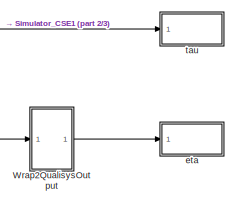
[diagram: root canvas - part 1/3, top right region]
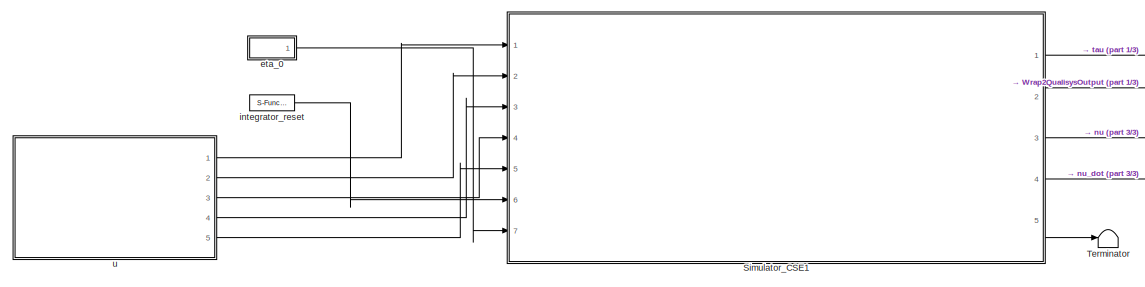
[diagram: root canvas - part 2/3, middle left region]
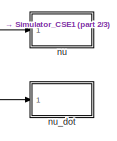
[diagram: root canvas - part 3/3, bottom right region]
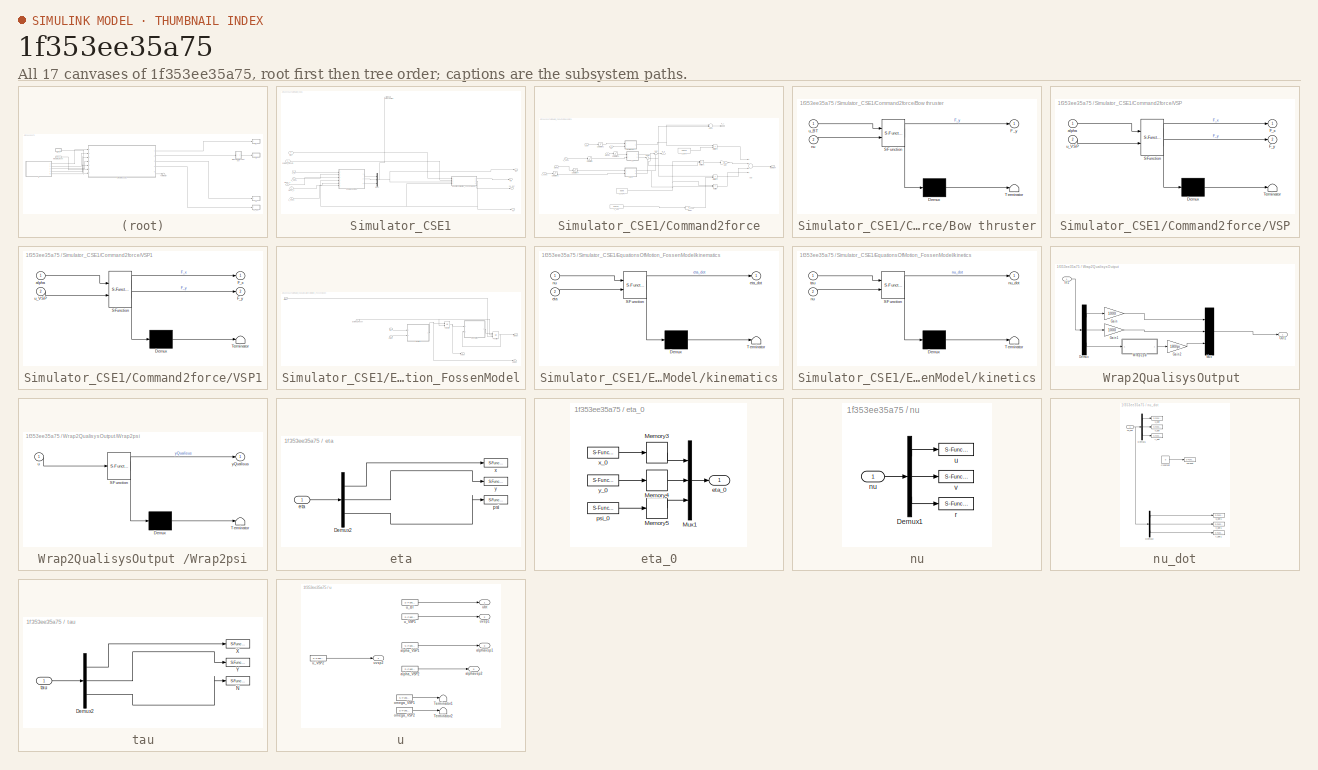
[diagram: thumbnail index - all 17 canvases of the model, root first then tree order]
MODEL slx_1f353ee35a75
KIND model
CONFIG AbsTol = auto
CONFIG EnableMultiTasking = on
CONFIG FixedStep = 0.01
CONFIG MaxStep = auto
CONFIG MinStep = auto
CONFIG RelTol = 1e-3
CONFIG SampleTimeConstraint = Unconstrained
CONFIG Solver = ode4
CONFIG SolverName = ode4
CONFIG StartTime = 0.0
CONFIG StopTime = inf
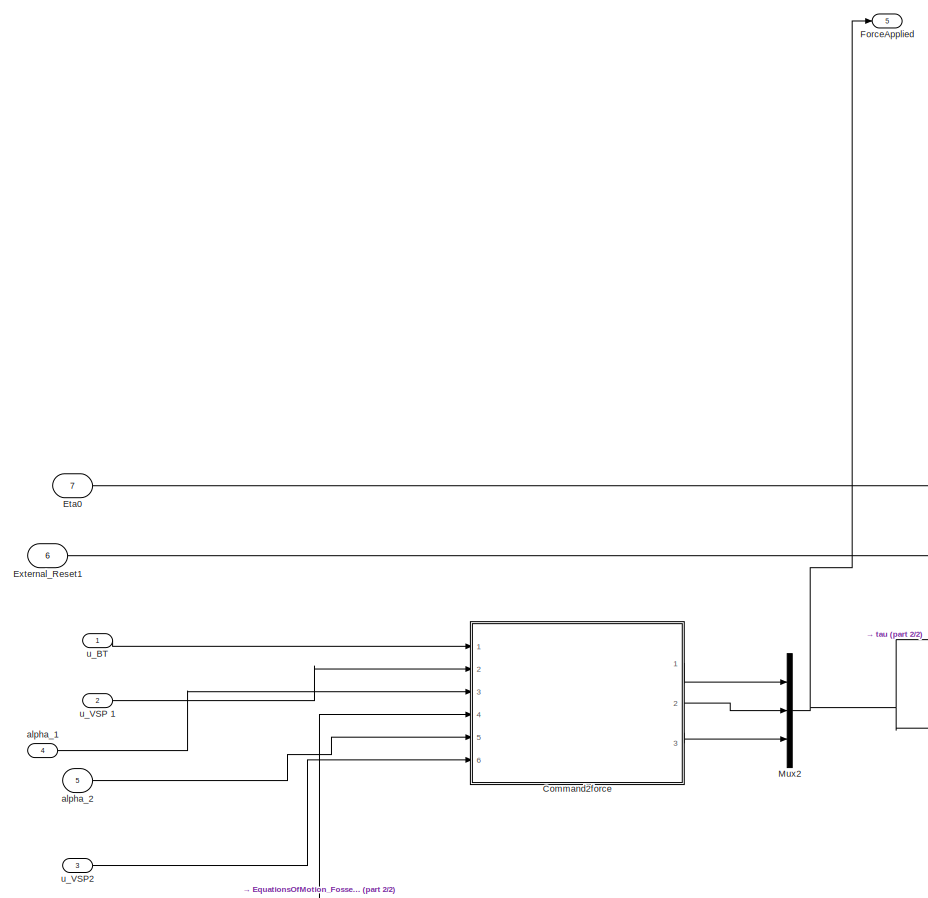
[diagram: Simulator_CSE1 - part 1/2, left side, full height]
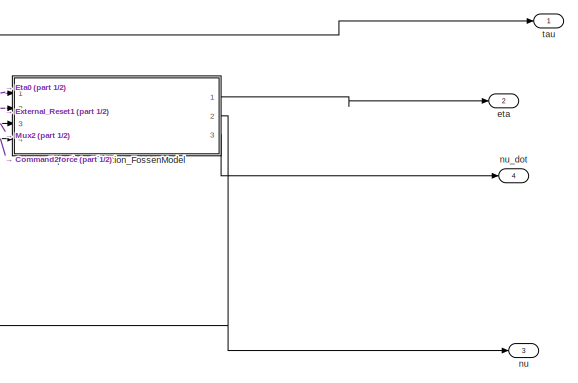
[diagram: Simulator_CSE1 - part 2/2, bottom right region]
BLOCK [SubSystem] Simulator_CSE1
  Ports = [7, 5]
  RequestExecContextInheritance = off
  Variant = off
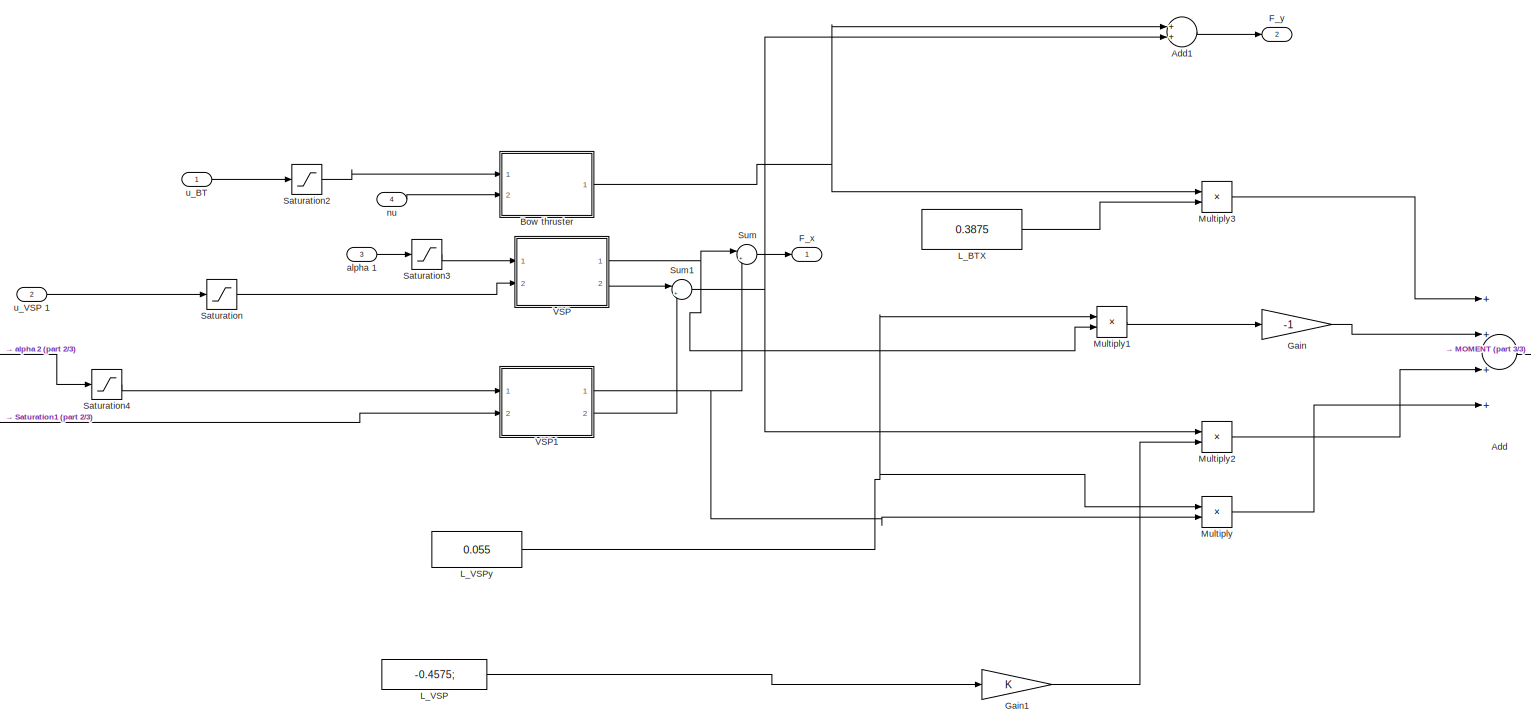
[diagram: Simulator_CSE1/Command2force - part 1/3, most of the canvas]
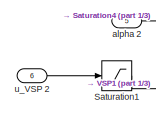
[diagram: Simulator_CSE1/Command2force - part 2/3, middle left region]
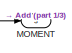
[diagram: Simulator_CSE1/Command2force - part 3/3, middle right region]
BLOCK [SubSystem] Simulator_CSE1/Command2force
  Ports = [6, 3]
  RequestExecContextInheritance = off
  Variant = off
BLOCK [Sum] Simulator_CSE1/Command2force/Add
  InputSameDT = off
  Inputs = ++++
  OutDataTypeStr = Inherit: Inherit via internal rule
  Ports = [4, 1]
  SaturateOnIntegerOverflow = off
BLOCK [Sum] Simulator_CSE1/Command2force/Add1
  InputSameDT = off
  OutDataTypeStr = Inherit: Inherit via internal rule
  Ports = [2, 1]
  SaturateOnIntegerOverflow = off
BLOCK [SubSystem] Simulator_CSE1/Command2force/Bow thruster
  ErrorFcn = Stateflow.Translate.translate
  PermitHierarchicalResolution = ExplicitOnly
  Ports = [2, 1]
  RequestExecContextInheritance = off
  SFBlockType = MATLAB Function
  TreatAsAtomicUnit = on
  Variant = off
BLOCK [Demux] Simulator_CSE1/Command2force/Bow thruster/ Demux 
  Outputs = 1
  Ports = [1, 1]
BLOCK [S-Function] Simulator_CSE1/Command2force/Bow thruster/ SFunction 
  EnableBusSupport = on
  FunctionName = sf_sfun
  PortCounts = [2 2]
  Ports = [2, 2]
  SFcnIsStateOwnerBlock = off
  SFunctionDeploymentMode = off
  Tag = Stateflow S-Function CSE1_HIL_u 12
BLOCK [Terminator] Simulator_CSE1/Command2force/Bow thruster/ Terminator 
BLOCK [Outport] Simulator_CSE1/Command2force/Bow thruster/F_y
  IconDisplay = Port number
BLOCK [Inport] Simulator_CSE1/Command2force/Bow thruster/nu
  IconDisplay = Port number
  Port = 2
BLOCK [Inport] Simulator_CSE1/Command2force/Bow thruster/u_BT
  IconDisplay = Port number
BLOCK [Outport] Simulator_CSE1/Command2force/F_x
  IconDisplay = Port number
BLOCK [Outport] Simulator_CSE1/Command2force/F_y 
  IconDisplay = Port number
  Port = 2
BLOCK [Gain] Simulator_CSE1/Command2force/Gain
  Gain = -1
  OutDataTypeStr = Inherit: Inherit via internal rule
  ParamDataTypeStr = Inherit: Inherit via internal rule
  SaturateOnIntegerOverflow = off
BLOCK [Gain] Simulator_CSE1/Command2force/Gain1
  OutDataTypeStr = Inherit: Inherit via internal rule
  ParamDataTypeStr = Inherit: Inherit via internal rule
  SaturateOnIntegerOverflow = off
BLOCK [Constant] Simulator_CSE1/Command2force/L_BTX
  Value = 0.3875
BLOCK [Constant] Simulator_CSE1/Command2force/L_VSP
  Value = -0.4575;
BLOCK [Constant] Simulator_CSE1/Command2force/L_VSPy
  Value = 0.055
BLOCK [Outport] Simulator_CSE1/Command2force/MOMENT 
  IconDisplay = Port number
  Port = 3
BLOCK [Product] Simulator_CSE1/Command2force/Multiply
  InputSameDT = off
  OutDataTypeStr = Inherit: Inherit via internal rule
  Ports = [2, 1]
  RndMeth = Floor
  SaturateOnIntegerOverflow = off
BLOCK [Product] Simulator_CSE1/Command2force/Multiply1
  InputSameDT = off
  OutDataTypeStr = Inherit: Inherit via internal rule
  Ports = [2, 1]
  RndMeth = Floor
  SaturateOnIntegerOverflow = off
BLOCK [Product] Simulator_CSE1/Command2force/Multiply2
  InputSameDT = off
  OutDataTypeStr = Inherit: Inherit via internal rule
  Ports = [2, 1]
  RndMeth = Floor
  SaturateOnIntegerOverflow = off
BLOCK [Product] Simulator_CSE1/Command2force/Multiply3
  InputSameDT = off
  OutDataTypeStr = Inherit: Inherit via internal rule
  Ports = [2, 1]
  RndMeth = Floor
  SaturateOnIntegerOverflow = off
BLOCK [Saturate] Simulator_CSE1/Command2force/Saturation
  InputPortMap = u0
  LowerLimit = 0
  Ports = [1, 1]
  UpperLimit = 1
BLOCK [Saturate] Simulator_CSE1/Command2force/Saturation1
  InputPortMap = u0
  LowerLimit = 0
  Ports = [1, 1]
  UpperLimit = 1
BLOCK [Saturate] Simulator_CSE1/Command2force/Saturation2
  InputPortMap = u0
  LowerLimit = -1
  Ports = [1, 1]
  UpperLimit = 1
BLOCK [Saturate] Simulator_CSE1/Command2force/Saturation3
  InputPortMap = u0
  LowerLimit = -pi
  Ports = [1, 1]
  UpperLimit = pi
BLOCK [Saturate] Simulator_CSE1/Command2force/Saturation4
  InputPortMap = u0
  LowerLimit = -pi
  Ports = [1, 1]
  UpperLimit = pi
BLOCK [Sum] Simulator_CSE1/Command2force/Sum
  IconShape = round
  InputSameDT = off
  Inputs = |++
  OutDataTypeStr = Inherit: Inherit via internal rule
  Ports = [2, 1]
  SaturateOnIntegerOverflow = off
BLOCK [Sum] Simulator_CSE1/Command2force/Sum1
  IconShape = round
  InputSameDT = off
  Inputs = |++
  OutDataTypeStr = Inherit: Inherit via internal rule
  Ports = [2, 1]
  SaturateOnIntegerOverflow = off
BLOCK [SubSystem] Simulator_CSE1/Command2force/VSP
  ErrorFcn = Stateflow.Translate.translate
  PermitHierarchicalResolution = ExplicitOnly
  Ports = [2, 2]
  RequestExecContextInheritance = off
  SFBlockType = MATLAB Function
  TreatAsAtomicUnit = on
  Variant = off
BLOCK [Demux] Simulator_CSE1/Command2force/VSP/ Demux 
  Outputs = 1
  Ports = [1, 1]
BLOCK [S-Function] Simulator_CSE1/Command2force/VSP/ SFunction 
  EnableBusSupport = on
  FunctionName = sf_sfun
  PortCounts = [2 3]
  Ports = [2, 3]
  SFcnIsStateOwnerBlock = off
  SFunctionDeploymentMode = off
  Tag = Stateflow S-Function CSE1_HIL_u 13
BLOCK [Terminator] Simulator_CSE1/Command2force/VSP/ Terminator 
BLOCK [Outport] Simulator_CSE1/Command2force/VSP/F_x
  IconDisplay = Port number
BLOCK [Outport] Simulator_CSE1/Command2force/VSP/F_y
  IconDisplay = Port number
  Port = 2
BLOCK [Inport] Simulator_CSE1/Command2force/VSP/alpha
  IconDisplay = Port number
BLOCK [Inport] Simulator_CSE1/Command2force/VSP/u_VSP
  IconDisplay = Port number
  Port = 2
BLOCK [SubSystem] Simulator_CSE1/Command2force/VSP1
  ErrorFcn = Stateflow.Translate.translate
  PermitHierarchicalResolution = ExplicitOnly
  Ports = [2, 2]
  RequestExecContextInheritance = off
  SFBlockType = MATLAB Function
  TreatAsAtomicUnit = on
  Variant = off
BLOCK [Demux] Simulator_CSE1/Command2force/VSP1/ Demux 
  Outputs = 1
  Ports = [1, 1]
BLOCK [S-Function] Simulator_CSE1/Command2force/VSP1/ SFunction 
  EnableBusSupport = on
  FunctionName = sf_sfun
  PortCounts = [2 3]
  Ports = [2, 3]
  SFcnIsStateOwnerBlock = off
  SFunctionDeploymentMode = off
  Tag = Stateflow S-Function CSE1_HIL_u 14
BLOCK [Terminator] Simulator_CSE1/Command2force/VSP1/ Terminator 
BLOCK [Outport] Simulator_CSE1/Command2force/VSP1/F_x
  IconDisplay = Port number
BLOCK [Outport] Simulator_CSE1/Command2force/VSP1/F_y
  IconDisplay = Port number
  Port = 2
BLOCK [Inport] Simulator_CSE1/Command2force/VSP1/alpha
  IconDisplay = Port number
BLOCK [Inport] Simulator_CSE1/Command2force/VSP1/u_VSP
  IconDisplay = Port number
  Port = 2
BLOCK [Inport] Simulator_CSE1/Command2force/alpha 1
  IconDisplay = Port number
  Port = 3
BLOCK [Inport] Simulator_CSE1/Command2force/alpha 2
  IconDisplay = Port number
  Port = 5
BLOCK [Inport] Simulator_CSE1/Command2force/nu
  IconDisplay = Port number
  Port = 4
BLOCK [Inport] Simulator_CSE1/Command2force/u_BT
  IconDisplay = Port number
BLOCK [Inport] Simulator_CSE1/Command2force/u_VSP 1
  IconDisplay = Port number
  Port = 2
BLOCK [Inport] Simulator_CSE1/Command2force/u_VSP 2
  IconDisplay = Port number
  Port = 6
BLOCK [SubSystem] Simulator_CSE1/EquationsOfMotion_FossenModel
  Ports = [4, 3]
  RequestExecContextInheritance = off
  Variant = off
BLOCK [Outport] Simulator_CSE1/EquationsOfMotion_FossenModel/EtaOut
  IconDisplay = Port number
BLOCK [Inport] Simulator_CSE1/EquationsOfMotion_FossenModel/External_Reset
  IconDisplay = Port number
  Port = 2
BLOCK [Integrator] Simulator_CSE1/EquationsOfMotion_FossenModel/Position
  ExternalReset = either
  InitialCondition = [0 0 0]'
  InitialConditionSource = external
  Ports = [3, 1]
BLOCK [Integrator] Simulator_CSE1/EquationsOfMotion_FossenModel/Velocity
  ExternalReset = either
  InitialCondition = [0 0 0]'
  Ports = [2, 1]
BLOCK [Inport] Simulator_CSE1/EquationsOfMotion_FossenModel/[eta0] 
  IconDisplay = Port number
BLOCK [SubSystem] Simulator_CSE1/EquationsOfMotion_FossenModel/kinematics
  ErrorFcn = Stateflow.Translate.translate
  PermitHierarchicalResolution = ExplicitOnly
  Ports = [2, 1]
  RequestExecContextInheritance = off
  SFBlockType = MATLAB Function
  TreatAsAtomicUnit = on
  Variant = off
BLOCK [Demux] Simulator_CSE1/EquationsOfMotion_FossenModel/kinematics/ Demux 
  Outputs = 1
  Ports = [1, 1]
BLOCK [S-Function] Simulator_CSE1/EquationsOfMotion_FossenModel/kinematics/ SFunction 
  EnableBusSupport = on
  FunctionName = sf_sfun
  PortCounts = [2 2]
  Ports = [2, 2]
  SFcnIsStateOwnerBlock = off
  SFunctionDeploymentMode = off
  Tag = Stateflow S-Function CSE1_HIL_u 1
BLOCK [Terminator] Simulator_CSE1/EquationsOfMotion_FossenModel/kinematics/ Terminator 
BLOCK [Inport] Simulator_CSE1/EquationsOfMotion_FossenModel/kinematics/eta
  IconDisplay = Port number
  Port = 2
BLOCK [Outport] Simulator_CSE1/EquationsOfMotion_FossenModel/kinematics/eta_dot
  IconDisplay = Port number
BLOCK [Inport] Simulator_CSE1/EquationsOfMotion_FossenModel/kinematics/nu
  IconDisplay = Port number
BLOCK [SubSystem] Simulator_CSE1/EquationsOfMotion_FossenModel/kinetics
  ErrorFcn = Stateflow.Translate.translate
  PermitHierarchicalResolution = ExplicitOnly
  Ports = [2, 1]
  RequestExecContextInheritance = off
  SFBlockType = MATLAB Function
  TreatAsAtomicUnit = on
  Variant = off
BLOCK [Demux] Simulator_CSE1/EquationsOfMotion_FossenModel/kinetics/ Demux 
  Outputs = 1
  Ports = [1, 1]
BLOCK [S-Function] Simulator_CSE1/EquationsOfMotion_FossenModel/kinetics/ SFunction 
  EnableBusSupport = on
  FunctionName = sf_sfun
  PortCounts = [2 2]
  Ports = [2, 2]
  SFcnIsStateOwnerBlock = off
  SFunctionDeploymentMode = off
  Tag = Stateflow S-Function CSE1_HIL_u 2
BLOCK [Terminator] Simulator_CSE1/EquationsOfMotion_FossenModel/kinetics/ Terminator 
BLOCK [Inport] Simulator_CSE1/EquationsOfMotion_FossenModel/kinetics/nu
  IconDisplay = Port number
  Port = 2
BLOCK [Outport] Simulator_CSE1/EquationsOfMotion_FossenModel/kinetics/nu_dot
  IconDisplay = Port number
BLOCK [Inport] Simulator_CSE1/EquationsOfMotion_FossenModel/kinetics/tau
  IconDisplay = Port number
BLOCK [Inport] Simulator_CSE1/EquationsOfMotion_FossenModel/nuInn
  IconDisplay = Port number
  Port = 4
BLOCK [Outport] Simulator_CSE1/EquationsOfMotion_FossenModel/nuOut
  IconDisplay = Port number
  Port = 2
BLOCK [Outport] Simulator_CSE1/EquationsOfMotion_FossenModel/nudot
  IconDisplay = Port number
  Port = 3
BLOCK [Inport] Simulator_CSE1/EquationsOfMotion_FossenModel/tau
  IconDisplay = Port number
  Port = 3
BLOCK [Inport] Simulator_CSE1/Eta0
  IconDisplay = Port number
  Port = 7
BLOCK [Inport] Simulator_CSE1/External_Reset1
  IconDisplay = Port number
  Port = 6
BLOCK [Outport] Simulator_CSE1/ForceApplied
  IconDisplay = Port number
  Port = 5
BLOCK [Mux] Simulator_CSE1/Mux2
  DisplayOption = bar
  Inputs = 3
  Ports = [3, 1]
BLOCK [Inport] Simulator_CSE1/alpha_1
  IconDisplay = Port number
  Port = 4
BLOCK [Inport] Simulator_CSE1/alpha_2
  IconDisplay = Port number
  Port = 5
BLOCK [Outport] Simulator_CSE1/eta
  IconDisplay = Port number
  Port = 2
BLOCK [Outport] Simulator_CSE1/nu
  IconDisplay = Port number
  Port = 3
BLOCK [Outport] Simulator_CSE1/nu_dot
  IconDisplay = Port number
  Port = 4
BLOCK [Outport] Simulator_CSE1/tau
  IconDisplay = Port number
BLOCK [Inport] Simulator_CSE1/u_BT
  IconDisplay = Port number
BLOCK [Inport] Simulator_CSE1/u_VSP 1
  IconDisplay = Port number
  Port = 2
BLOCK [Inport] Simulator_CSE1/u_VSP2
  IconDisplay = Port number
  Port = 3
BLOCK [Terminator] Terminator
BLOCK [SubSystem] Wrap2QualisysOutput 
  Ports = [1, 1]
  RequestExecContextInheritance = off
  Variant = off
BLOCK [Demux] Wrap2QualisysOutput /Demux
  DisplayOption = bar
  Outputs = 3
  Ports = [1, 3]
BLOCK [Gain] Wrap2QualisysOutput /Gain
  Gain = 1000
  OutDataTypeStr = Inherit: Inherit via internal rule
  ParamDataTypeStr = Inherit: Inherit via internal rule
  SaturateOnIntegerOverflow = off
BLOCK [Gain] Wrap2QualisysOutput /Gain1
  Gain = 1000
  OutDataTypeStr = Inherit: Inherit via internal rule
  ParamDataTypeStr = Inherit: Inherit via internal rule
  SaturateOnIntegerOverflow = off
BLOCK [Gain] Wrap2QualisysOutput /Gain2
  Gain = 180/pi
  OutDataTypeStr = Inherit: Inherit via internal rule
  ParamDataTypeStr = Inherit: Inherit via internal rule
  SaturateOnIntegerOverflow = off
BLOCK [Inport] Wrap2QualisysOutput /In1
  IconDisplay = Port number
BLOCK [Mux] Wrap2QualisysOutput /Mux
  DisplayOption = bar
  Inputs = 3
  Ports = [3, 1]
BLOCK [Outport] Wrap2QualisysOutput /Out1
  IconDisplay = Port number
BLOCK [SubSystem] Wrap2QualisysOutput /Wrap2psi
  ErrorFcn = Stateflow.Translate.translate
  PermitHierarchicalResolution = ExplicitOnly
  Ports = [1, 1]
  RequestExecContextInheritance = off
  SFBlockType = MATLAB Function
  TreatAsAtomicUnit = on
  Variant = off
BLOCK [Demux] Wrap2QualisysOutput /Wrap2psi/ Demux 
  Outputs = 1
  Ports = [1, 1]
BLOCK [S-Function] Wrap2QualisysOutput /Wrap2psi/ SFunction 
  EnableBusSupport = off
  FunctionName = sf_sfun
  PortCounts = [1 2]
  Ports = [1, 2]
  SFcnIsStateOwnerBlock = off
  SFunctionDeploymentMode = off
  Tag = Stateflow S-Function CSE1_HIL_u 4
BLOCK [Terminator] Wrap2QualisysOutput /Wrap2psi/ Terminator 
BLOCK [Inport] Wrap2QualisysOutput /Wrap2psi/u
  IconDisplay = Port number
BLOCK [Outport] Wrap2QualisysOutput /Wrap2psi/yQualisus
  IconDisplay = Port number
BLOCK [SubSystem] eta
  Ports = [1]
  RequestExecContextInheritance = off
  Variant = off
BLOCK [Demux] eta/Demux2
  DisplayOption = bar
  Outputs = 3
  Ports = [1, 3]
BLOCK [Inport] eta/eta
  IconDisplay = Port number
BLOCK [S-Function] eta/psi
  CopyFcn = NIVeriStand_MDL_functions('', 'IO_copy');
  DeleteFcn = NIVeriStand_MDL_functions('', 'IO_delete');
  EnableBusSupport = off
  FunctionName = NIVeriStandIO
  MoveFcn = set_param(gcb, 'Mask', 'on');
  Parameters = width dtype portnum stime stype btype
  Ports = [1]
  Priority = 3
  SFcnIsStateOwnerBlock = off
  SFunctionDeploymentMode = off
BLOCK [S-Function] eta/x
  CopyFcn = NIVeriStand_MDL_functions('', 'IO_copy');
  DeleteFcn = NIVeriStand_MDL_functions('', 'IO_delete');
  EnableBusSupport = off
  FunctionName = NIVeriStandIO
  MoveFcn = set_param(gcb, 'Mask', 'on');
  Parameters = width dtype portnum stime stype btype
  Ports = [1]
  Priority = 1
  SFcnIsStateOwnerBlock = off
  SFunctionDeploymentMode = off
BLOCK [S-Function] eta/y
  CopyFcn = NIVeriStand_MDL_functions('', 'IO_copy');
  DeleteFcn = NIVeriStand_MDL_functions('', 'IO_delete');
  EnableBusSupport = off
  FunctionName = NIVeriStandIO
  MoveFcn = set_param(gcb, 'Mask', 'on');
  Parameters = width dtype portnum stime stype btype
  Ports = [1]
  Priority = 2
  SFcnIsStateOwnerBlock = off
  SFunctionDeploymentMode = off
BLOCK [SubSystem] eta_0
  Ports = [0, 1]
  RequestExecContextInheritance = off
  Variant = off
BLOCK [Memory] eta_0/Memory3
BLOCK [Memory] eta_0/Memory4
BLOCK [Memory] eta_0/Memory5
BLOCK [Mux] eta_0/Mux1
  DisplayOption = bar
  Inputs = 3
  Ports = [3, 1]
BLOCK [Outport] eta_0/eta_0
  IconDisplay = Port number
BLOCK [S-Function] eta_0/psi_0
  CopyFcn = NIVeriStand_MDL_functions('', 'IO_copy');
  DeleteFcn = NIVeriStand_MDL_functions('', 'IO_delete');
  EnableBusSupport = off
  FunctionName = NIVeriStandIO
  MoveFcn = set_param(gcb, 'Mask', 'on');
  Parameters = width dtype portnum stime stype btype
  Ports = [0, 1]
  Priority = 1
  SFcnIsStateOwnerBlock = off
  SFunctionDeploymentMode = off
BLOCK [S-Function] eta_0/x_0
  CopyFcn = NIVeriStand_MDL_functions('', 'IO_copy');
  DeleteFcn = NIVeriStand_MDL_functions('', 'IO_delete');
  EnableBusSupport = off
  FunctionName = NIVeriStandIO
  MoveFcn = set_param(gcb, 'Mask', 'on');
  Parameters = width dtype portnum stime stype btype
  Ports = [0, 1]
  Priority = 2
  SFcnIsStateOwnerBlock = off
  SFunctionDeploymentMode = off
BLOCK [S-Function] eta_0/y_0
  CopyFcn = NIVeriStand_MDL_functions('', 'IO_copy');
  DeleteFcn = NIVeriStand_MDL_functions('', 'IO_delete');
  EnableBusSupport = off
  FunctionName = NIVeriStandIO
  MoveFcn = set_param(gcb, 'Mask', 'on');
  Parameters = width dtype portnum stime stype btype
  Ports = [0, 1]
  Priority = 3
  SFcnIsStateOwnerBlock = off
  SFunctionDeploymentMode = off
BLOCK [S-Function] integrator_reset
  CopyFcn = NIVeriStand_MDL_functions('', 'IO_copy');
  DeleteFcn = NIVeriStand_MDL_functions('', 'IO_delete');
  EnableBusSupport = off
  FunctionName = NIVeriStandIO
  MoveFcn = set_param(gcb, 'Mask', 'on');
  Parameters = width dtype portnum stime stype btype
  Ports = [0, 1]
  Priority = 1
  SFcnIsStateOwnerBlock = off
  SFunctionDeploymentMode = off
BLOCK [SubSystem] nu
  Ports = [1]
  RequestExecContextInheritance = off
  Variant = off
BLOCK [Demux] nu/Demux1
  DisplayOption = bar
  Outputs = 3
  Ports = [1, 3]
BLOCK [Inport] nu/nu
  IconDisplay = Port number
BLOCK [S-Function] nu/r
  CopyFcn = NIVeriStand_MDL_functions('', 'IO_copy');
  DeleteFcn = NIVeriStand_MDL_functions('', 'IO_delete');
  EnableBusSupport = off
  FunctionName = NIVeriStandIO
  MoveFcn = set_param(gcb, 'Mask', 'on');
  Parameters = width dtype portnum stime stype btype
  Ports = [1]
  Priority = 1
  SFcnIsStateOwnerBlock = off
  SFunctionDeploymentMode = off
BLOCK [S-Function] nu/u
  CopyFcn = NIVeriStand_MDL_functions('', 'IO_copy');
  DeleteFcn = NIVeriStand_MDL_functions('', 'IO_delete');
  EnableBusSupport = off
  FunctionName = NIVeriStandIO
  MoveFcn = set_param(gcb, 'Mask', 'on');
  Parameters = width dtype portnum stime stype btype
  Ports = [1]
  Priority = 2
  SFcnIsStateOwnerBlock = off
  SFunctionDeploymentMode = off
BLOCK [S-Function] nu/v
  CopyFcn = NIVeriStand_MDL_functions('', 'IO_copy');
  DeleteFcn = NIVeriStand_MDL_functions('', 'IO_delete');
  EnableBusSupport = off
  FunctionName = NIVeriStandIO
  MoveFcn = set_param(gcb, 'Mask', 'on');
  Parameters = width dtype portnum stime stype btype
  Ports = [1]
  Priority = 3
  SFcnIsStateOwnerBlock = off
  SFunctionDeploymentMode = off
BLOCK [SubSystem] nu_dot
  Ports = [1]
  RequestExecContextInheritance = off
  Variant = off
BLOCK [Constant] nu_dot/Constant
  Value = 0
BLOCK [Demux] nu_dot/Demux1
  DisplayOption = bar
  Outputs = 3
  Ports = [1, 3]
BLOCK [Demux] nu_dot/Demux2
  DisplayOption = bar
  Outputs = 3
  Ports = [1, 3]
BLOCK [Inport] nu_dot/nu_dot
  IconDisplay = Port number
BLOCK [S-Function] nu_dot/r_dot
  CopyFcn = NIVeriStand_MDL_functions('', 'IO_copy');
  DeleteFcn = NIVeriStand_MDL_functions('', 'IO_delete');
  EnableBusSupport = off
  FunctionName = NIVeriStandIO
  MoveFcn = set_param(gcb, 'Mask', 'on');
  Parameters = width dtype portnum stime stype btype
  Ports = [1]
  Priority = 1
  SFcnIsStateOwnerBlock = off
  SFunctionDeploymentMode = off
BLOCK [S-Function] nu_dot/r_dot1
  CopyFcn = NIVeriStand_MDL_functions('', 'IO_copy');
  DeleteFcn = NIVeriStand_MDL_functions('', 'IO_delete');
  EnableBusSupport = off
  FunctionName = NIVeriStandIO
  MoveFcn = set_param(gcb, 'Mask', 'on');
  Parameters = width dtype portnum stime stype btype
  Ports = [1]
  Priority = 5
  SFcnIsStateOwnerBlock = off
  SFunctionDeploymentMode = off
BLOCK [S-Function] nu_dot/u_dot
  CopyFcn = NIVeriStand_MDL_functions('', 'IO_copy');
  DeleteFcn = NIVeriStand_MDL_functions('', 'IO_delete');
  EnableBusSupport = off
  FunctionName = NIVeriStandIO
  MoveFcn = set_param(gcb, 'Mask', 'on');
  Parameters = width dtype portnum stime stype btype
  Ports = [1]
  Priority = 2
  SFcnIsStateOwnerBlock = off
  SFunctionDeploymentMode = off
BLOCK [S-Function] nu_dot/u_dot1
  CopyFcn = NIVeriStand_MDL_functions('', 'IO_copy');
  DeleteFcn = NIVeriStand_MDL_functions('', 'IO_delete');
  EnableBusSupport = off
  FunctionName = NIVeriStandIO
  MoveFcn = set_param(gcb, 'Mask', 'on');
  Parameters = width dtype portnum stime stype btype
  Ports = [1]
  Priority = 6
  SFcnIsStateOwnerBlock = off
  SFunctionDeploymentMode = off
BLOCK [S-Function] nu_dot/v_dot
  CopyFcn = NIVeriStand_MDL_functions('', 'IO_copy');
  DeleteFcn = NIVeriStand_MDL_functions('', 'IO_delete');
  EnableBusSupport = off
  FunctionName = NIVeriStandIO
  MoveFcn = set_param(gcb, 'Mask', 'on');
  Parameters = width dtype portnum stime stype btype
  Ports = [1]
  Priority = 3
  SFcnIsStateOwnerBlock = off
  SFunctionDeploymentMode = off
BLOCK [S-Function] nu_dot/v_dot1
  CopyFcn = NIVeriStand_MDL_functions('', 'IO_copy');
  DeleteFcn = NIVeriStand_MDL_functions('', 'IO_delete');
  EnableBusSupport = off
  FunctionName = NIVeriStandIO
  MoveFcn = set_param(gcb, 'Mask', 'on');
  Parameters = width dtype portnum stime stype btype
  Ports = [1]
  Priority = 7
  SFcnIsStateOwnerBlock = off
  SFunctionDeploymentMode = off
BLOCK [S-Function] nu_dot/zeroout
  CopyFcn = NIVeriStand_MDL_functions('', 'IO_copy');
  DeleteFcn = NIVeriStand_MDL_functions('', 'IO_delete');
  EnableBusSupport = off
  FunctionName = NIVeriStandIO
  MoveFcn = set_param(gcb, 'Mask', 'on');
  Parameters = width dtype portnum stime stype btype
  Ports = [1]
  Priority = 4
  SFcnIsStateOwnerBlock = off
  SFunctionDeploymentMode = off
BLOCK [SubSystem] tau
  Ports = [1]
  RequestExecContextInheritance = off
  Variant = off
BLOCK [Demux] tau/Demux2
  DisplayOption = bar
  Outputs = 3
  Ports = [1, 3]
BLOCK [S-Function] tau/N
  CopyFcn = NIVeriStand_MDL_functions('', 'IO_copy');
  DeleteFcn = NIVeriStand_MDL_functions('', 'IO_delete');
  EnableBusSupport = off
  FunctionName = NIVeriStandIO
  MoveFcn = set_param(gcb, 'Mask', 'on');
  Parameters = width dtype portnum stime stype btype
  Ports = [1]
  Priority = 3
  SFcnIsStateOwnerBlock = off
  SFunctionDeploymentMode = off
BLOCK [S-Function] tau/X
  CopyFcn = NIVeriStand_MDL_functions('', 'IO_copy');
  DeleteFcn = NIVeriStand_MDL_functions('', 'IO_delete');
  EnableBusSupport = off
  FunctionName = NIVeriStandIO
  MoveFcn = set_param(gcb, 'Mask', 'on');
  Parameters = width dtype portnum stime stype btype
  Ports = [1]
  Priority = 1
  SFcnIsStateOwnerBlock = off
  SFunctionDeploymentMode = off
BLOCK [S-Function] tau/Y
  CopyFcn = NIVeriStand_MDL_functions('', 'IO_copy');
  DeleteFcn = NIVeriStand_MDL_functions('', 'IO_delete');
  EnableBusSupport = off
  FunctionName = NIVeriStandIO
  MoveFcn = set_param(gcb, 'Mask', 'on');
  Parameters = width dtype portnum stime stype btype
  Ports = [1]
  Priority = 2
  SFcnIsStateOwnerBlock = off
  SFunctionDeploymentMode = off
BLOCK [Inport] tau/tau
  IconDisplay = Port number
BLOCK [SubSystem] u
  Ports = [0, 5]
  RequestExecContextInheritance = off
  Variant = off
BLOCK [Terminator] u/Terminator1
BLOCK [Terminator] u/Terminator2
BLOCK [S-Function] u/alpha_VSP1
  CopyFcn = NIVeriStand_MDL_functions('', 'IO_copy');
  DeleteFcn = NIVeriStand_MDL_functions('', 'IO_delete');
  EnableBusSupport = off
  FunctionName = NIVeriStandIO
  MoveFcn = set_param(gcb, 'Mask', 'on');
  Parameters = width dtype portnum stime stype btype
  Ports = [0, 1]
  Priority = 5
  SFcnIsStateOwnerBlock = off
  SFunctionDeploymentMode = off
BLOCK [S-Function] u/alpha_VSP2
  CopyFcn = NIVeriStand_MDL_functions('', 'IO_copy');
  DeleteFcn = NIVeriStand_MDL_functions('', 'IO_delete');
  EnableBusSupport = off
  FunctionName = NIVeriStandIO
  MoveFcn = set_param(gcb, 'Mask', 'on');
  Parameters = width dtype portnum stime stype btype
  Ports = [0, 1]
  Priority = 6
  SFcnIsStateOwnerBlock = off
  SFunctionDeploymentMode = off
BLOCK [Outport] u/alphavsp1
  IconDisplay = Port number
  Port = 3
BLOCK [Outport] u/alphavsp2
  IconDisplay = Port number
  Port = 5
BLOCK [S-Function] u/omega_VSP1
  CopyFcn = NIVeriStand_MDL_functions('', 'IO_copy');
  DeleteFcn = NIVeriStand_MDL_functions('', 'IO_delete');
  EnableBusSupport = off
  FunctionName = NIVeriStandIO
  MoveFcn = set_param(gcb, 'Mask', 'on');
  Parameters = width dtype portnum stime stype btype
  Ports = [0, 1]
  Priority = 7
  SFcnIsStateOwnerBlock = off
  SFunctionDeploymentMode = off
BLOCK [S-Function] u/omega_VSP2
  CopyFcn = NIVeriStand_MDL_functions('', 'IO_copy');
  DeleteFcn = NIVeriStand_MDL_functions('', 'IO_delete');
  EnableBusSupport = off
  FunctionName = NIVeriStandIO
  MoveFcn = set_param(gcb, 'Mask', 'on');
  Parameters = width dtype portnum stime stype btype
  Ports = [0, 1]
  Priority = 8
  SFcnIsStateOwnerBlock = off
  SFunctionDeploymentMode = off
BLOCK [S-Function] u/u_BT
  CopyFcn = NIVeriStand_MDL_functions('', 'IO_copy');
  DeleteFcn = NIVeriStand_MDL_functions('', 'IO_delete');
  EnableBusSupport = off
  FunctionName = NIVeriStandIO
  MoveFcn = set_param(gcb, 'Mask', 'on');
  Parameters = width dtype portnum stime stype btype
  Ports = [0, 1]
  Priority = 2
  SFcnIsStateOwnerBlock = off
  SFunctionDeploymentMode = off
BLOCK [S-Function] u/u_VSP1
  CopyFcn = NIVeriStand_MDL_functions('', 'IO_copy');
  DeleteFcn = NIVeriStand_MDL_functions('', 'IO_delete');
  EnableBusSupport = off
  FunctionName = NIVeriStandIO
  MoveFcn = set_param(gcb, 'Mask', 'on');
  Parameters = width dtype portnum stime stype btype
  Ports = [0, 1]
  Priority = 3
  SFcnIsStateOwnerBlock = off
  SFunctionDeploymentMode = off
BLOCK [S-Function] u/u_VSP2
  CopyFcn = NIVeriStand_MDL_functions('', 'IO_copy');
  DeleteFcn = NIVeriStand_MDL_functions('', 'IO_delete');
  EnableBusSupport = off
  FunctionName = NIVeriStandIO
  MoveFcn = set_param(gcb, 'Mask', 'on');
  Parameters = width dtype portnum stime stype btype
  Ports = [0, 1]
  Priority = 4
  SFcnIsStateOwnerBlock = off
  SFunctionDeploymentMode = off
BLOCK [Outport] u/ubt
  IconDisplay = Port number
BLOCK [Outport] u/uvsp1
  IconDisplay = Port number
  Port = 2
BLOCK [Outport] u/uvsp2
  IconDisplay = Port number
  Port = 4
LINE Simulator_CSE1/Command2force/Add1:1 -> Simulator_CSE1/Command2force/F_y :1
LINE Simulator_CSE1/Command2force/Add:1 -> Simulator_CSE1/Command2force/MOMENT :1
NET Simulator_CSE1/Command2force/Bow thruster:1 -> Simulator_CSE1/Command2force/Add1:1, Simulator_CSE1/Command2force/Multiply3:1
LINE Simulator_CSE1/Command2force/Gain1:1 -> Simulator_CSE1/Command2force/Multiply2:2
LINE Simulator_CSE1/Command2force/Gain:1 -> Simulator_CSE1/Command2force/Add:2
LINE Simulator_CSE1/Command2force/L_BTX:1 -> Simulator_CSE1/Command2force/Multiply3:2
LINE Simulator_CSE1/Command2force/L_VSP:1 -> Simulator_CSE1/Command2force/Gain1:1
NET Simulator_CSE1/Command2force/L_VSPy:1 -> Simulator_CSE1/Command2force/Multiply1:1, Simulator_CSE1/Command2force/Multiply:1
LINE Simulator_CSE1/Command2force/Multiply1:1 -> Simulator_CSE1/Command2force/Gain:1
LINE Simulator_CSE1/Command2force/Multiply2:1 -> Simulator_CSE1/Command2force/Add:3
LINE Simulator_CSE1/Command2force/Multiply3:1 -> Simulator_CSE1/Command2force/Add:1
LINE Simulator_CSE1/Command2force/Multiply:1 -> Simulator_CSE1/Command2force/Add:4
LINE Simulator_CSE1/Command2force/Saturation1:1 -> Simulator_CSE1/Command2force/VSP1:2
LINE Simulator_CSE1/Command2force/Saturation2:1 -> Simulator_CSE1/Command2force/Bow thruster:1
LINE Simulator_CSE1/Command2force/Saturation3:1 -> Simulator_CSE1/Command2force/VSP:1
LINE Simulator_CSE1/Command2force/Saturation4:1 -> Simulator_CSE1/Command2force/VSP1:1
LINE Simulator_CSE1/Command2force/Saturation:1 -> Simulator_CSE1/Command2force/VSP:2
NET Simulator_CSE1/Command2force/Sum1:1 -> Simulator_CSE1/Command2force/Add1:2, Simulator_CSE1/Command2force/Multiply2:1
LINE Simulator_CSE1/Command2force/Sum:1 -> Simulator_CSE1/Command2force/F_x:1
NET Simulator_CSE1/Command2force/VSP1:1 -> Simulator_CSE1/Command2force/Multiply:2, Simulator_CSE1/Command2force/Sum:2
LINE Simulator_CSE1/Command2force/VSP1:2 -> Simulator_CSE1/Command2force/Sum1:2
NET Simulator_CSE1/Command2force/VSP:1 -> Simulator_CSE1/Command2force/Multiply1:2, Simulator_CSE1/Command2force/Sum:1
LINE Simulator_CSE1/Command2force/VSP:2 -> Simulator_CSE1/Command2force/Sum1:1
LINE Simulator_CSE1/Command2force/alpha 1:1 -> Simulator_CSE1/Command2force/Saturation3:1
LINE Simulator_CSE1/Command2force/alpha 2:1 -> Simulator_CSE1/Command2force/Saturation4:1
LINE Simulator_CSE1/Command2force/nu:1 -> Simulator_CSE1/Command2force/Bow thruster:2
LINE Simulator_CSE1/Command2force/u_BT:1 -> Simulator_CSE1/Command2force/Saturation2:1
LINE Simulator_CSE1/Command2force/u_VSP 1:1 -> Simulator_CSE1/Command2force/Saturation:1
LINE Simulator_CSE1/Command2force/u_VSP 2:1 -> Simulator_CSE1/Command2force/Saturation1:1
LINE Simulator_CSE1/Command2force:1 -> Simulator_CSE1/Mux2:1
LINE Simulator_CSE1/Command2force:2 -> Simulator_CSE1/Mux2:2
LINE Simulator_CSE1/Command2force:3 -> Simulator_CSE1/Mux2:3
NET Simulator_CSE1/EquationsOfMotion_FossenModel/External_Reset:1 -> Simulator_CSE1/EquationsOfMotion_FossenModel/Position:2, Simulator_CSE1/EquationsOfMotion_FossenModel/Velocity:2
NET Simulator_CSE1/EquationsOfMotion_FossenModel/Position:1 -> Simulator_CSE1/EquationsOfMotion_FossenModel/EtaOut:1, Simulator_CSE1/EquationsOfMotion_FossenModel/kinematics:2
NET Simulator_CSE1/EquationsOfMotion_FossenModel/Velocity:1 -> Simulator_CSE1/EquationsOfMotion_FossenModel/kinematics:1, Simulator_CSE1/EquationsOfMotion_FossenModel/nuOut:1
LINE Simulator_CSE1/EquationsOfMotion_FossenModel/[eta0] :1 -> Simulator_CSE1/EquationsOfMotion_FossenModel/Position:3
LINE Simulator_CSE1/EquationsOfMotion_FossenModel/kinematics:1 -> Simulator_CSE1/EquationsOfMotion_FossenModel/Position:1
NET Simulator_CSE1/EquationsOfMotion_FossenModel/kinetics:1 -> Simulator_CSE1/EquationsOfMotion_FossenModel/Velocity:1, Simulator_CSE1/EquationsOfMotion_FossenModel/nudot:1
LINE Simulator_CSE1/EquationsOfMotion_FossenModel/nuInn:1 -> Simulator_CSE1/EquationsOfMotion_FossenModel/kinetics:2
LINE Simulator_CSE1/EquationsOfMotion_FossenModel/tau:1 -> Simulator_CSE1/EquationsOfMotion_FossenModel/kinetics:1
LINE Simulator_CSE1/EquationsOfMotion_FossenModel:1 -> Simulator_CSE1/eta:1
NET Simulator_CSE1/EquationsOfMotion_FossenModel:2 -> Simulator_CSE1/Command2force:4, Simulator_CSE1/EquationsOfMotion_FossenModel:4, Simulator_CSE1/nu:1
LINE Simulator_CSE1/EquationsOfMotion_FossenModel:3 -> Simulator_CSE1/nu_dot:1
LINE Simulator_CSE1/Eta0:1 -> Simulator_CSE1/EquationsOfMotion_FossenModel:1
LINE Simulator_CSE1/External_Reset1:1 -> Simulator_CSE1/EquationsOfMotion_FossenModel:2
NET Simulator_CSE1/Mux2:1 -> Simulator_CSE1/EquationsOfMotion_FossenModel:3, Simulator_CSE1/ForceApplied:1, Simulator_CSE1/tau:1
LINE Simulator_CSE1/alpha_1:1 -> Simulator_CSE1/Command2force:3
LINE Simulator_CSE1/alpha_2:1 -> Simulator_CSE1/Command2force:5
LINE Simulator_CSE1/u_BT:1 -> Simulator_CSE1/Command2force:1
LINE Simulator_CSE1/u_VSP 1:1 -> Simulator_CSE1/Command2force:2
LINE Simulator_CSE1/u_VSP2:1 -> Simulator_CSE1/Command2force:6
LINE Simulator_CSE1:1 -> tau:1
LINE Simulator_CSE1:2 -> Wrap2QualisysOutput :1
LINE Simulator_CSE1:3 -> nu:1
LINE Simulator_CSE1:4 -> nu_dot:1
LINE Simulator_CSE1:5 -> Terminator:1
LINE Wrap2QualisysOutput /Demux:1 -> Wrap2QualisysOutput /Gain:1
LINE Wrap2QualisysOutput /Demux:2 -> Wrap2QualisysOutput /Gain1:1
LINE Wrap2QualisysOutput /Demux:3 -> Wrap2QualisysOutput /Wrap2psi:1
LINE Wrap2QualisysOutput /Gain1:1 -> Wrap2QualisysOutput /Mux:2
LINE Wrap2QualisysOutput /Gain2:1 -> Wrap2QualisysOutput /Mux:3
LINE Wrap2QualisysOutput /Gain:1 -> Wrap2QualisysOutput /Mux:1
LINE Wrap2QualisysOutput /In1:1 -> Wrap2QualisysOutput /Demux:1
LINE Wrap2QualisysOutput /Mux:1 -> Wrap2QualisysOutput /Out1:1
LINE Wrap2QualisysOutput /Wrap2psi:1 -> Wrap2QualisysOutput /Gain2:1
LINE Wrap2QualisysOutput :1 -> eta:1
LINE eta/Demux2:1 -> eta/x:1
LINE eta/Demux2:2 -> eta/y:1
LINE eta/Demux2:3 -> eta/psi:1
LINE eta/eta:1 -> eta/Demux2:1
LINE eta_0/Memory3:1 -> eta_0/Mux1:1
LINE eta_0/Memory4:1 -> eta_0/Mux1:2
LINE eta_0/Memory5:1 -> eta_0/Mux1:3
LINE eta_0/Mux1:1 -> eta_0/eta_0:1
LINE eta_0/psi_0:1 -> eta_0/Memory5:1
LINE eta_0/x_0:1 -> eta_0/Memory3:1
LINE eta_0/y_0:1 -> eta_0/Memory4:1
LINE eta_0:1 -> Simulator_CSE1:7
LINE integrator_reset:1 -> Simulator_CSE1:6
LINE nu/Demux1:1 -> nu/u:1
LINE nu/Demux1:2 -> nu/v:1
LINE nu/Demux1:3 -> nu/r:1
LINE nu/nu:1 -> nu/Demux1:1
LINE nu_dot/Constant:1 -> nu_dot/zeroout:1
LINE nu_dot/Demux1:1 -> nu_dot/u_dot:1
LINE nu_dot/Demux1:2 -> nu_dot/v_dot:1
LINE nu_dot/Demux1:3 -> nu_dot/r_dot:1
LINE nu_dot/Demux2:1 -> nu_dot/u_dot1:1
LINE nu_dot/Demux2:2 -> nu_dot/v_dot1:1
LINE nu_dot/Demux2:3 -> nu_dot/r_dot1:1
NET nu_dot/nu_dot:1 -> nu_dot/Demux1:1, nu_dot/Demux2:1
LINE tau/Demux2:1 -> tau/X:1
LINE tau/Demux2:2 -> tau/Y:1
LINE tau/Demux2:3 -> tau/N:1
LINE tau/tau:1 -> tau/Demux2:1
LINE u/alpha_VSP1:1 -> u/alphavsp1:1
LINE u/alpha_VSP2:1 -> u/alphavsp2:1
LINE u/omega_VSP1:1 -> u/Terminator1:1
LINE u/omega_VSP2:1 -> u/Terminator2:1
LINE u/u_BT:1 -> u/ubt:1
LINE u/u_VSP1:1 -> u/uvsp1:1
LINE u/u_VSP2:1 -> u/uvsp2:1
LINE u:1 -> Simulator_CSE1:1
LINE u:2 -> Simulator_CSE1:2
LINE u:3 -> Simulator_CSE1:4
LINE u:4 -> Simulator_CSE1:3
LINE u:5 -> Simulator_CSE1:5
note: NET lines group one-source signal fan-out (src -> all destinations, sorted); 1:1 wires keep LINE
CHART Simulator_CSE1/EquationsOfMotion_FossenModel/kinematics states=1 transitions=1
  STATE_LABEL 'eML_blk_kernel()'
  STATE_LABEL 'SCRIPT:\nfunction eta_dot = CSE1_eta_dot(nu,eta)\n\npsi = eta(3);\n\nJ = [cos(psi) -sin(psi) 0\n     sin(psi) cos(psi)  0\n     0        0         1];\n\neta_dot = J*nu;'
CHART Simulator_CSE1/EquationsOfMotion_FossenModel/kinetics states=1 transitions=1
  STATE_LABEL 'eML_blk_kernel()'
  STATE_LABEL 'SCRIPT:\nfunction nu_dot = CSE1_nu_dot(tau,nu)\n\nu   = nu(1);\nv   = nu(2);\nr   = nu(3);\n\ntau = [tau(1);tau(2);tau(3)];\n%% MATRICES \n%changed m from 14.79 to 14.11\n\nm    = 14.11;   I_z  =  1.7600;   x_g = 0.0375;       % x_g  =  0.0460; % Table B.1\n\n%% Added mass\n%changed Y_vd from -1.0 to -10.0\nX_ud  =     -2.0;\t\t\t\t\t\t\t\t\t\t\t% Table B.1\n\t\t\t\t\tY_vd =      -10.0;\tN_vd =    -0.0;\t\t% Table B.1\n\t\t\t\t\tY_rd =  ...<+1548ch>'
CHART Wrap2QualisysOutput
/Wrap2psi states=1 transitions=1
  STATE_LABEL 'eML_blk_kernel()'
  STATE_LABEL 'SCRIPT:\nfunction yQualisus = fcn(u)\ny=sin(u)\nx=cos(u)\nyQualisus=atan2(y,x);\nend\n'
CHART Simulator_CSE1/Command2force/Bow thruster states=1 transitions=1
  STATE_LABEL 'eML_blk_kernel()'
  STATE_LABEL 'SCRIPT:\nfunction F_y = fcn(u_BT,nu)\n%#codegen\nu = nu(1);\n% Thruster characteristics\nif u_BT >0\n    u_BT=u_BT+ 0.059;\n    a =        -548;\n    b =       0.193;\n    c =       548.2;\n    d =      0.1992;\n    y0 = -(a*exp(b*-u_BT) + c*exp(d*-u_BT));\nelseif u_BT < 0\n    u_BT=u_BT- 0.059;\n    a =        -548;\n    b =       0.193;\n    c =       548.2;\n    d =      0.1992;\n    y0 = a*exp(b*u_BT) + c*exp(d...<+285ch>'
CHART Simulator_CSE1/Command2force/VSP states=1 transitions=1
  STATE_LABEL 'eML_blk_kernel()'
  STATE_LABEL 'SCRIPT:\nfunction [ F_x , F_y ] = fcn(alpha,u_VSP)\n%#codegen\n% Calculating the force in x-direction\na1 =       1.107  ;\nb1 =       1.001  ;\nc1 =       1.564  ;\na2 =      0.3471 ;\nb2 =      0.1397 ;\nc2 =      -1.599  ;\na3 =      0.1558 ;\nb3 =       1.993  ;\nc3 =       1.886  ;\na4 =      0.1599 ;\nb4 =       0.218  ;\nc4 =       1.513  ;\na5 =     0.08237 ;\nb5 =       2.986  ;\nc5 =      -1.601  ;\na6 =  ...<+931ch>'
CHART Simulator_CSE1/Command2force/VSP1 states=1 transitions=1
  STATE_LABEL 'eML_blk_kernel()'
  STATE_LABEL 'SCRIPT:\nfunction [ F_x , F_y ] = fcn(alpha,u_VSP)\n%#codegen\n% Calculating the force in x-direction\na1 =       1.107  ;\nb1 =       1.001  ;\nc1 =       1.564  ;\na2 =      0.3471 ;\nb2 =      0.1397 ;\nc2 =      -1.599  ;\na3 =      0.1558 ;\nb3 =       1.993  ;\nc3 =       1.886  ;\na4 =      0.1599 ;\nb4 =       0.218  ;\nc4 =       1.513  ;\na5 =     0.08237 ;\nb5 =       2.986  ;\nc5 =      -1.601  ;\na6 =  ...<+931ch>'
